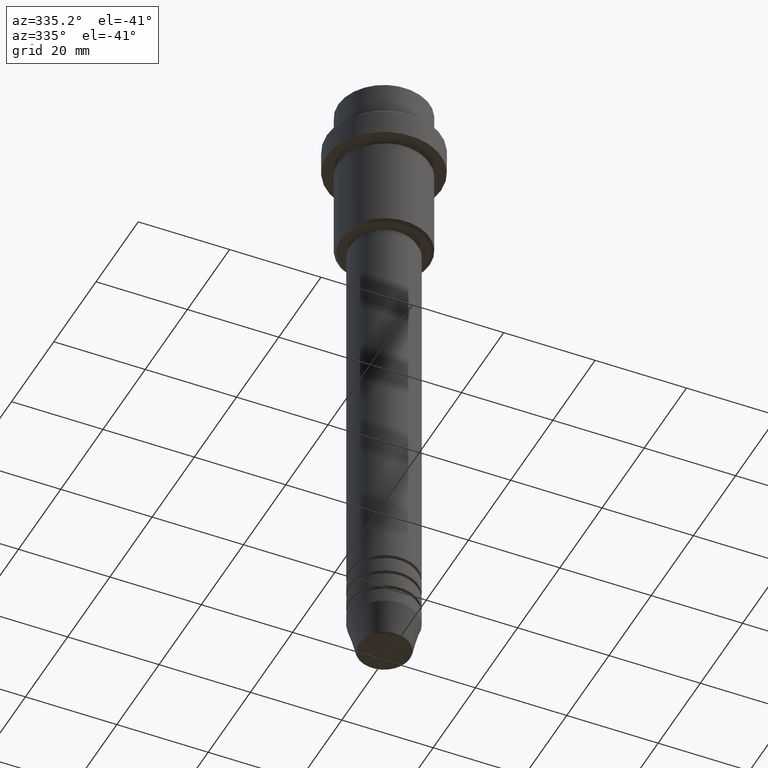
[diagram: clean part render]
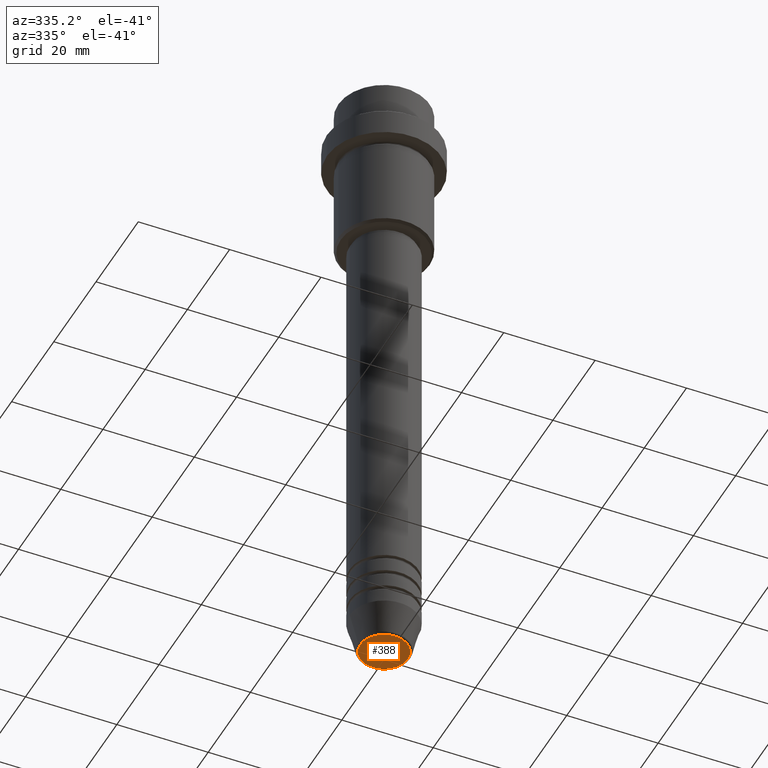
[diagram: same view with one face highlighted and labeled with its STEP entity id]
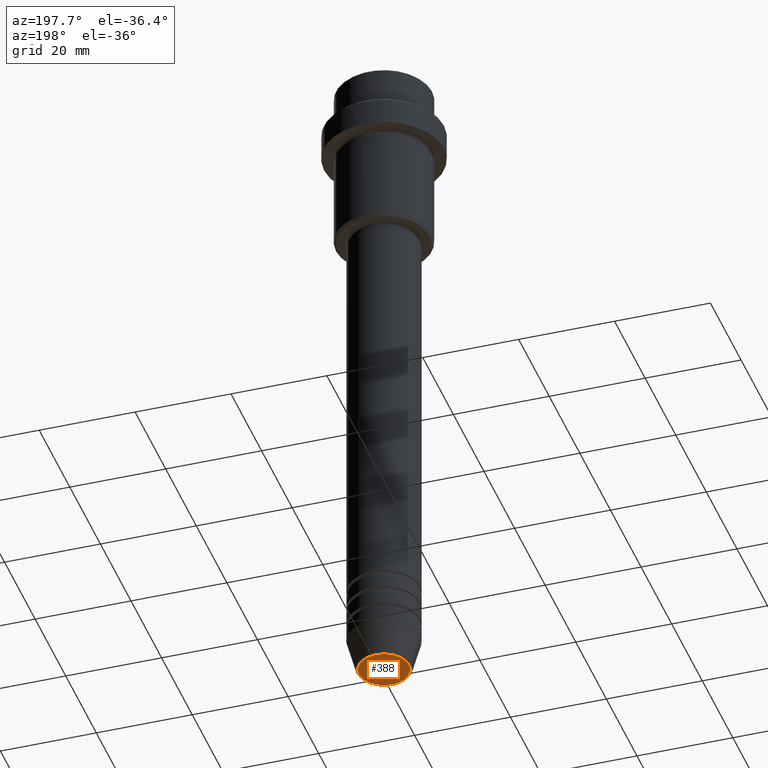
[diagram: same view with one face highlighted and labeled with its STEP entity id]
A machine part, auxiliary view. The second image highlights one B-rep face of the part: STEP entity #388.
A second angle (auxiliary view) of the same face is appended — the face is thin or edge-on in the first view.
In plain terms, the highlighted planar face has unit normal (0, -0, 1).
Its self-contained STEP definition (entity closure, byte-faithful):
#62 = AXIS2_PLACEMENT_3D ( 'NONE', #1209, #1122, #1325 ) ;
#70 = VERTEX_POINT ( 'NONE', #1128 ) ;
#96 = VERTEX_POINT ( 'NONE', #1002 ) ;
#116 = EDGE_CURVE ( 'NONE', #96, #70, #996, .T. ) ;
#142 = DIRECTION ( 'NONE',  ( 0.000000000000000000, 0.000000000000000000, -1.000000000000000000 ) ) ;
#218 = AXIS2_PLACEMENT_3D ( 'NONE', #672, #685, #808 ) ;
#250 = PLANE ( 'NONE',  #62 ) ;
#317 = ORIENTED_EDGE ( 'NONE', *, *, #395, .T. ) ;
#388 = ADVANCED_FACE ( 'NONE', ( #895 ), #250, .F. ) ;
#395 = EDGE_CURVE ( 'NONE', #70, #96, #1316, .T. ) ;
#612 = EDGE_LOOP ( 'NONE', ( #317, #875 ) ) ;
#672 = CARTESIAN_POINT ( 'NONE',  ( 0.000000000000000000, 0.000000000000000000, -141.0000000000000000 ) ) ;
#685 = DIRECTION ( 'NONE',  ( 0.000000000000000000, 0.000000000000000000, -1.000000000000000000 ) ) ;
#725 = AXIS2_PLACEMENT_3D ( 'NONE', #1091, #142, #1225 ) ;
#808 = DIRECTION ( 'NONE',  ( 1.000000000000000000, 0.000000000000000000, 0.000000000000000000 ) ) ;
#875 = ORIENTED_EDGE ( 'NONE', *, *, #116, .T. ) ;
#895 = FACE_OUTER_BOUND ( 'NONE', #612, .T. ) ;
#996 = CIRCLE ( 'NONE', #218, 5.240692158992658278 ) ;
#1002 = CARTESIAN_POINT ( 'NONE',  ( -5.240692158992658278, 6.713726370671660431E-16, -141.0000000000000000 ) ) ;
#1091 = CARTESIAN_POINT ( 'NONE',  ( 0.000000000000000000, 0.000000000000000000, -141.0000000000000000 ) ) ;
#1122 = DIRECTION ( 'NONE',  ( 0.000000000000000000, -0.000000000000000000, 1.000000000000000000 ) ) ;
#1128 = CARTESIAN_POINT ( 'NONE',  ( 5.240692158992658278, 0.000000000000000000, -141.0000000000000000 ) ) ;
#1209 = CARTESIAN_POINT ( 'NONE',  ( 0.000000000000000000, 0.000000000000000000, -141.0000000000000000 ) ) ;
#1225 = DIRECTION ( 'NONE',  ( 1.000000000000000000, 0.000000000000000000, 0.000000000000000000 ) ) ;
#1316 = CIRCLE ( 'NONE', #725, 5.240692158992658278 ) ;
#1325 = DIRECTION ( 'NONE',  ( 1.000000000000000000, 0.000000000000000000, 0.000000000000000000 ) ) ;